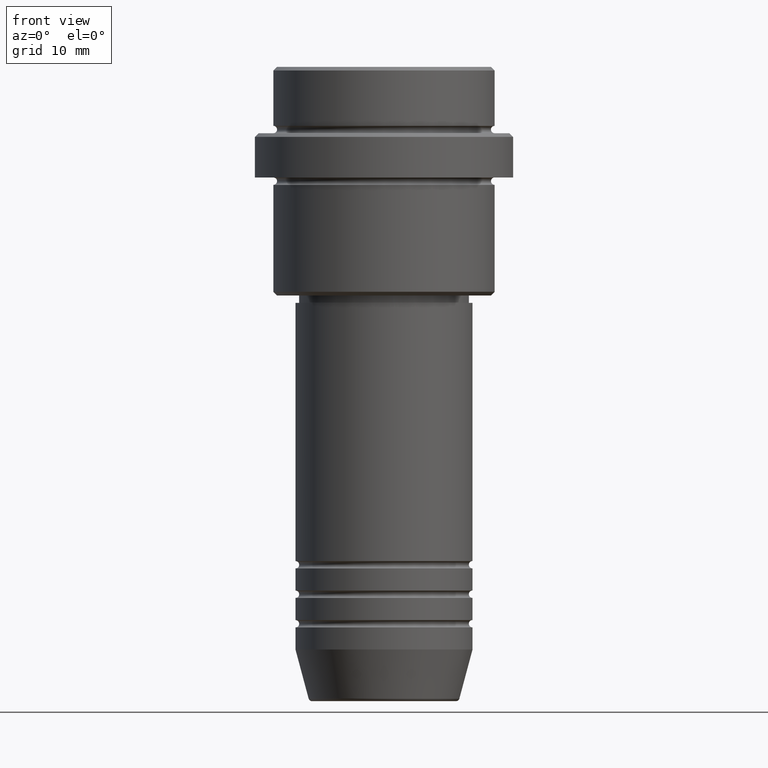
[diagram: clean part render]
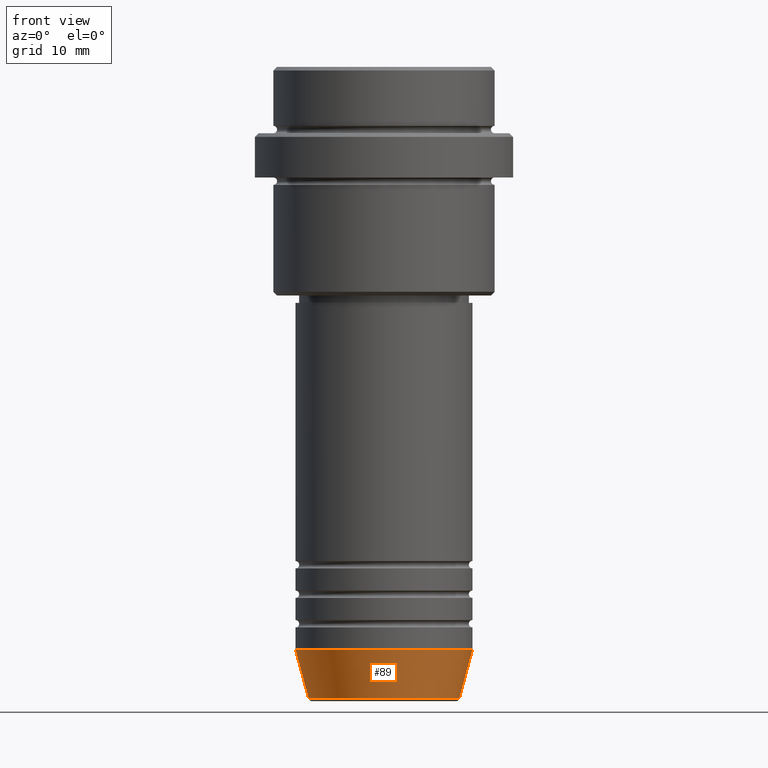
[diagram: same view with one face highlighted and labeled with its STEP entity id]
A machine part, front view. The second image highlights one B-rep face of the part: STEP entity #89.
In plain terms, the highlighted conical surface has half-angle 15 deg.
Its self-contained STEP definition (entity closure, byte-faithful):
#11 = DIRECTION ( 'NONE',  ( -0.000000000000000000, -0.000000000000000000, 1.000000000000000000 ) ) ;
#41 = CARTESIAN_POINT ( 'NONE',  ( 12.00000000000000000, 0.000000000000000000, -79.00000000000000000 ) ) ;
#75 = CARTESIAN_POINT ( 'NONE',  ( 12.00000000000000000, 0.000000000000000000, -79.00000000000000000 ) ) ;
#89 = ADVANCED_FACE ( 'NONE', ( #675 ), #635, .T. ) ;
#113 = CARTESIAN_POINT ( 'NONE',  ( 0.000000000000000000, 0.000000000000000000, -85.62940952255125637 ) ) ;
#134 = DIRECTION ( 'NONE',  ( -0.000000000000000000, -0.000000000000000000, 1.000000000000000000 ) ) ;
#199 = CARTESIAN_POINT ( 'NONE',  ( -12.00000000000000000, 1.469576158976823947E-15, -79.00000000000000000 ) ) ;
#234 = EDGE_LOOP ( 'NONE', ( #1274, #595, #446, #721 ) ) ;
#252 = CARTESIAN_POINT ( 'NONE',  ( 0.000000000000000000, 0.000000000000000000, -79.00000000000000000 ) ) ;
#318 = VERTEX_POINT ( 'NONE', #199 ) ;
#386 = AXIS2_PLACEMENT_3D ( 'NONE', #113, #11, #654 ) ;
#406 = EDGE_CURVE ( 'NONE', #458, #590, #1149, .T. ) ;
#408 = CARTESIAN_POINT ( 'NONE',  ( 10.22365507213718949, 0.000000000000000000, -85.62940952255125637 ) ) ;
#446 = ORIENTED_EDGE ( 'NONE', *, *, #1074, .T. ) ;
#458 = VERTEX_POINT ( 'NONE', #916 ) ;
#550 = EDGE_CURVE ( 'NONE', #318, #1019, #614, .T. ) ;
#590 = VERTEX_POINT ( 'NONE', #408 ) ;
#595 = ORIENTED_EDGE ( 'NONE', *, *, #406, .T. ) ;
#614 = CIRCLE ( 'NONE', #1269, 12.00000000000000000 ) ;
#635 = CONICAL_SURFACE ( 'NONE', #672, 12.00000000000000000, 0.2617993877991500740 ) ;
#646 = LINE ( 'NONE', #1395, #1364 ) ;
#654 = DIRECTION ( 'NONE',  ( 1.000000000000000000, 0.000000000000000000, 0.000000000000000000 ) ) ;
#657 = VECTOR ( 'NONE', #825, 1000.000000000000000 ) ;
#672 = AXIS2_PLACEMENT_3D ( 'NONE', #1230, #1104, #1088 ) ;
#675 = FACE_OUTER_BOUND ( 'NONE', #234, .T. ) ;
#697 = DIRECTION ( 'NONE',  ( 1.000000000000000000, 0.000000000000000000, 0.000000000000000000 ) ) ;
#705 = LINE ( 'NONE', #75, #657 ) ;
#721 = ORIENTED_EDGE ( 'NONE', *, *, #550, .F. ) ;
#825 = DIRECTION ( 'NONE',  ( 0.2588190451025213501, 0.000000000000000000, 0.9659258262890680902 ) ) ;
#830 = EDGE_CURVE ( 'NONE', #458, #318, #646, .T. ) ;
#916 = CARTESIAN_POINT ( 'NONE',  ( -10.22365507213718949, 1.360806402472382744E-15, -85.62940952255125637 ) ) ;
#961 = DIRECTION ( 'NONE',  ( -0.2588190451025213501, 3.169619151431772337E-17, 0.9659258262890680902 ) ) ;
#1019 = VERTEX_POINT ( 'NONE', #41 ) ;
#1074 = EDGE_CURVE ( 'NONE', #590, #1019, #705, .T. ) ;
#1088 = DIRECTION ( 'NONE',  ( 1.000000000000000000, 0.000000000000000000, 0.000000000000000000 ) ) ;
#1104 = DIRECTION ( 'NONE',  ( -0.000000000000000000, -0.000000000000000000, 1.000000000000000000 ) ) ;
#1149 = CIRCLE ( 'NONE', #386, 10.22365507213718949 ) ;
#1230 = CARTESIAN_POINT ( 'NONE',  ( 0.000000000000000000, 0.000000000000000000, -79.00000000000000000 ) ) ;
#1269 = AXIS2_PLACEMENT_3D ( 'NONE', #252, #134, #697 ) ;
#1274 = ORIENTED_EDGE ( 'NONE', *, *, #830, .F. ) ;
#1364 = VECTOR ( 'NONE', #961, 1000.000000000000000 ) ;
#1395 = CARTESIAN_POINT ( 'NONE',  ( -12.00000000000000000, 1.469576158976823947E-15, -79.00000000000000000 ) ) ;